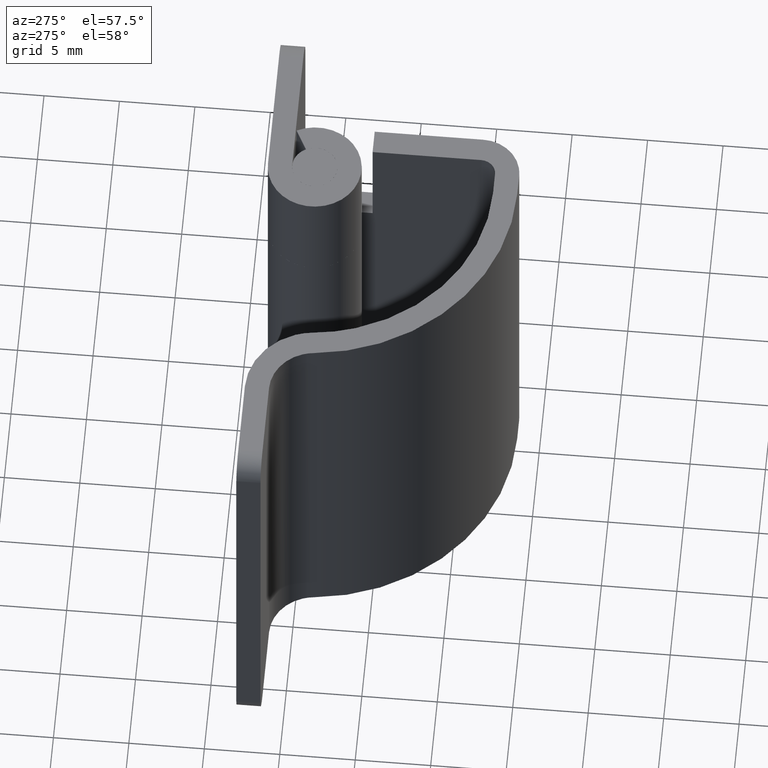
[diagram: clean part render]
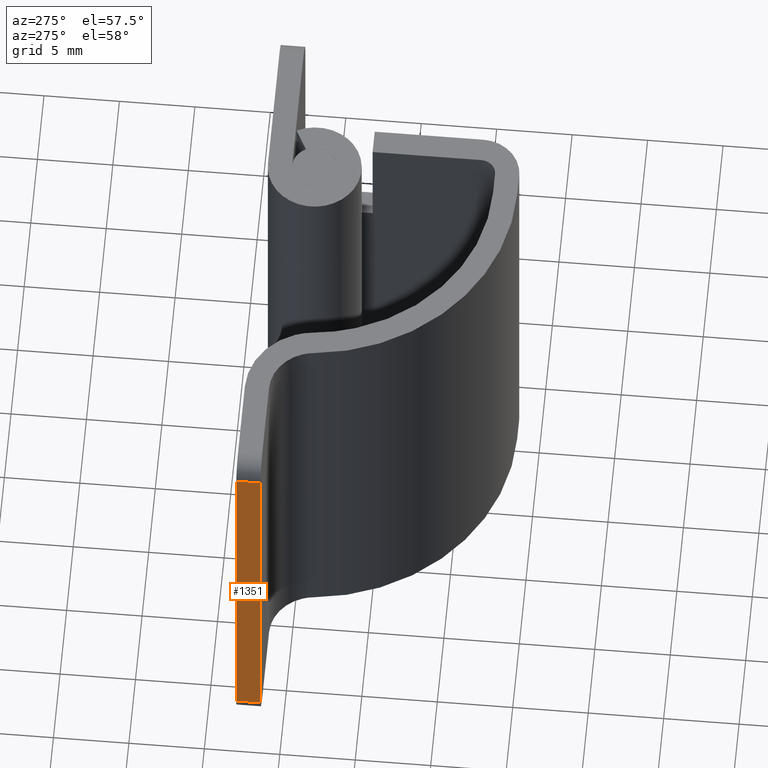
[diagram: same view with one face highlighted and labeled with its STEP entity id]
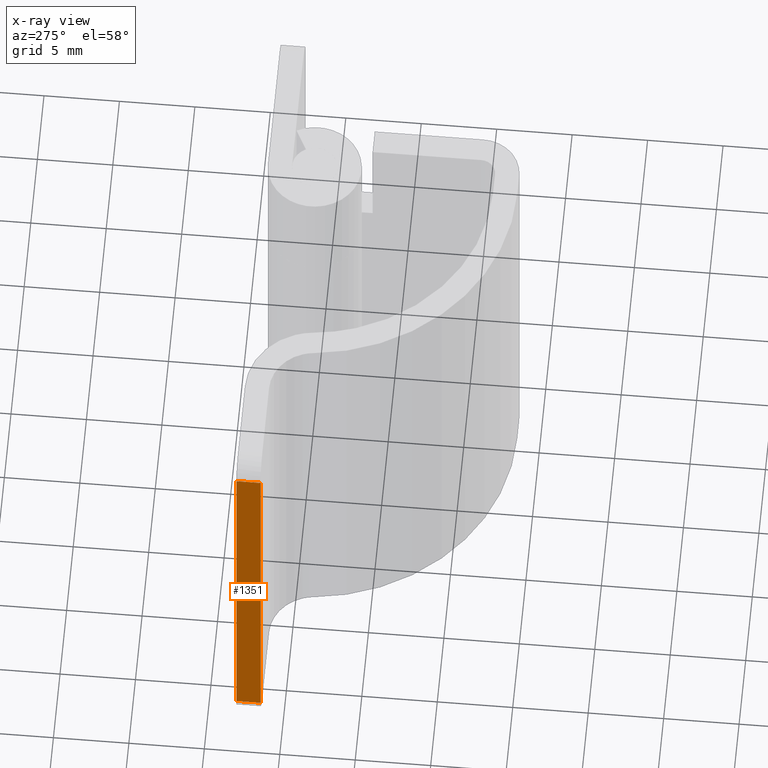
[diagram: x-ray of the same camera — body ghosted, the highlighted face saturated]
A machine part, auxiliary view. The second image highlights one B-rep face of the part: STEP entity #1351.
The next image is the same camera in x-ray: the body ghosted, the highlighted face saturated — about 0% of this face is hidden behind the body in this view.
In plain terms, the highlighted face is a freeform B-spline surface patch.
Its self-contained STEP definition (entity closure, byte-faithful):
#1224=CARTESIAN_POINT('',(-27.500000000000000,3.099998000000000,28.500000000000000));
#1225=VERTEX_POINT('',#1224);
#1241=CARTESIAN_POINT('',(-27.500000000000000,1.500000000000000,28.500000000000000));
#1242=VERTEX_POINT('',#1241);
#1243=CARTESIAN_POINT('',(-27.500000000000000,1.500000000000000,28.500000000000000));
#1244=CARTESIAN_POINT('',(-27.500000000000000,3.099998000000000,28.500000000000000));
#1245=QUASI_UNIFORM_CURVE('',1,(#1243,#1244),.UNSPECIFIED.,.F.,.U.);
#1246=EDGE_CURVE('',#1242,#1225,#1245,.T.);
#1287=CARTESIAN_POINT('',(-27.500000000000000,3.099998000000000,1.499999999999946));
#1288=VERTEX_POINT('',#1287);
#1309=CARTESIAN_POINT('',(-27.500000000000000,1.500000000000000,1.499999999999946));
#1310=VERTEX_POINT('',#1309);
#1324=CARTESIAN_POINT('',(-27.500000000000000,3.099998000000000,1.499999999999946));
#1325=CARTESIAN_POINT('',(-27.500000000000000,1.500000000000000,1.499999999999946));
#1326=QUASI_UNIFORM_CURVE('',1,(#1324,#1325),.UNSPECIFIED.,.F.,.U.);
#1327=EDGE_CURVE('',#1288,#1310,#1326,.T.);
#1332=CARTESIAN_POINT('',(-27.500000000000000,1.420080103001107,0.151350052331180));
#1333=CARTESIAN_POINT('',(-27.500000000000000,1.420080103001107,29.848650671865201));
#1334=CARTESIAN_POINT('',(-27.500000000000000,3.179917939914184,0.151350052331180));
#1335=CARTESIAN_POINT('',(-27.500000000000000,3.179917939914184,29.848650671865201));
#1336=B_SPLINE_SURFACE_WITH_KNOTS('',1,1,((#1332,#1334),(#1333,#1335)),.UNSPECIFIED.,.F.,.F.,.U.,(2,2),(2,2),(0.0,29.697300619534019),(0.041708334948495,0.958291687403247),.UNSPECIFIED.);
#1337=CARTESIAN_POINT('',(-27.500000000000000,3.099998000000000,1.499999999999946));
#1338=CARTESIAN_POINT('',(-27.500000000000000,3.099998000000000,28.500000000000000));
#1339=QUASI_UNIFORM_CURVE('',1,(#1337,#1338),.UNSPECIFIED.,.F.,.U.);
#1340=EDGE_CURVE('',#1288,#1225,#1339,.T.);
#1341=ORIENTED_EDGE('',*,*,#1340,.F.);
#1342=ORIENTED_EDGE('',*,*,#1327,.T.);
#1343=CARTESIAN_POINT('',(-27.500000000000000,1.500000000000000,1.499999999999946));
#1344=CARTESIAN_POINT('',(-27.500000000000000,1.500000000000000,28.500000000000000));
#1345=QUASI_UNIFORM_CURVE('',1,(#1343,#1344),.UNSPECIFIED.,.F.,.U.);
#1346=EDGE_CURVE('',#1310,#1242,#1345,.T.);
#1347=ORIENTED_EDGE('',*,*,#1346,.T.);
#1348=ORIENTED_EDGE('',*,*,#1246,.T.);
#1349=EDGE_LOOP('',(#1341,#1342,#1347,#1348));
#1350=FACE_OUTER_BOUND('',#1349,.T.);
#1351=ADVANCED_FACE('',(#1350),#1336,.T.);